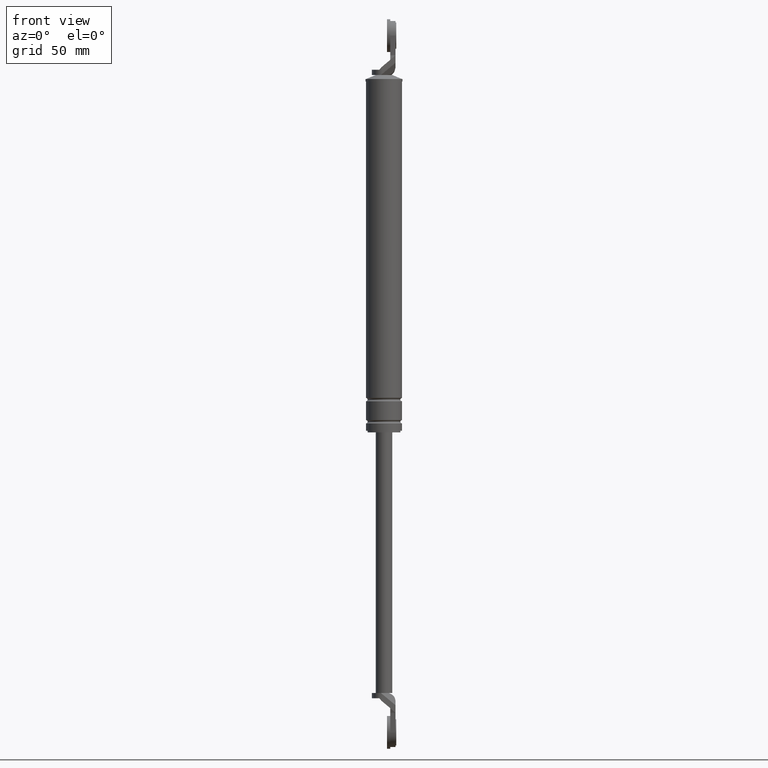
[diagram: clean part render]
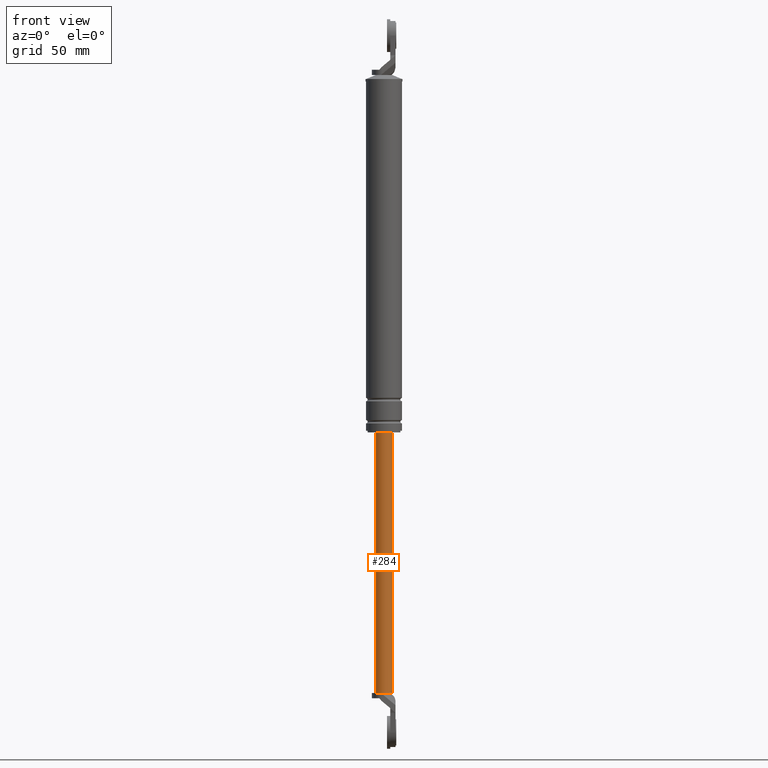
[diagram: same view with one face highlighted and labeled with its STEP entity id]
A machine part, front view. The second image highlights one B-rep face of the part: STEP entity #284.
In plain terms, the highlighted cylindrical surface (edge-blend (fillet) strip) has radius 5 mm, axis along (0, 0, 1).
Its self-contained STEP definition (entity closure, byte-faithful):
#284=ADVANCED_FACE('',(#1099),#1098,.T.);
#1098=CYLINDRICAL_SURFACE('',#1768,5.00000000000E+000);
#1099=FACE_OUTER_BOUND('',#1769,.T.);
#1765=CARTESIAN_POINT('',(0.00000000000E+000,3.58204186421E-014,0.00000000000E+000));
#1766=DIRECTION('',(-0.00000000000E+000,-0.00000000000E+000,1.00000000000E+000));
#1767=DIRECTION('',(1.00000000000E+000,0.00000000000E+000,0.00000000000E+000));
#1768=AXIS2_PLACEMENT_3D('',#1765,#1766,#1767);
#1769=EDGE_LOOP('',(#2167,#2168,#2169,#2170,#2171));
#2167=ORIENTED_EDGE('',*,*,#2372,.F.);
#2168=ORIENTED_EDGE('',*,*,#2343,.F.);
#2169=ORIENTED_EDGE('',*,*,#2376,.T.);
#2170=ORIENTED_EDGE('',*,*,#2374,.T.);
#2171=ORIENTED_EDGE('',*,*,#2377,.F.);
#2343=EDGE_CURVE('',#3464,#3442,#3471,.T.);
#2372=EDGE_CURVE('',#3442,#3657,#3658,.T.);
#2374=EDGE_CURVE('',#3670,#3671,#3672,.T.);
#2376=EDGE_CURVE('',#3464,#3670,#3684,.T.);
#2377=EDGE_CURVE('',#3657,#3671,#3690,.T.);
#3442=VERTEX_POINT('',#4363);
#3464=VERTEX_POINT('',#4377);
#3471=CIRCLE('',#4385,5.00000000000E+000);
#3657=VERTEX_POINT('',#4487);
#3658=CIRCLE('',#4491,5.00000000000E+000);
#3670=VERTEX_POINT('',#4496);
#3671=VERTEX_POINT('',#4497);
#3672=CIRCLE('',#4501,5.00000000000E+000);
#3684=(BOUNDED_CURVE() B_SPLINE_CURVE(1,(#4506,#4507),.UNSPECIFIED.,.F.,.F.) B_SPLINE_CURVE_WITH_KNOTS((2,2),(5.58659216388E-002,9.44134078355E-001),.UNSPECIFIED.) CURVE() GEOMETRIC_REPRESENTATION_ITEM() RATIONAL_B_SPLINE_CURVE((1.00000000000E+000,1.00000000000E+000)) REPRESENTATION_ITEM('') );
#3690=(BOUNDED_CURVE() B_SPLINE_CURVE(1,(#4508,#4509),.UNSPECIFIED.,.F.,.F.) B_SPLINE_CURVE_WITH_KNOTS((2,2),(5.58659217877E-002,9.44134078212E-001),.UNSPECIFIED.) CURVE() GEOMETRIC_REPRESENTATION_ITEM() RATIONAL_B_SPLINE_CURVE((7.50000000000E-001,7.50000000000E-001)) REPRESENTATION_ITEM('') );
#4363=CARTESIAN_POINT('',(2.00000000000E+000,-4.58257569496E+000,-2.88000015000E+002));
#4377=CARTESIAN_POINT('',(5.00000000000E+000,-1.00795464218E-011,-2.88000015000E+002));
#4382=CARTESIAN_POINT('',(0.00000000000E+000,3.58204186421E-014,-2.88000015000E+002));
#4383=DIRECTION('',(0.00000000000E+000,0.00000000000E+000,-1.00000000000E+000));
#4384=DIRECTION('',(4.00000000000E-001,9.16515138991E-001,0.00000000000E+000));
#4385=AXIS2_PLACEMENT_3D('',#4382,#4383,#4384);
#4487=CARTESIAN_POINT('',(-5.00000000000E+000,8.97827334275E-007,-2.88000015000E+002));
#4488=CARTESIAN_POINT('',(0.00000000000E+000,3.58204186421E-014,-2.88000015000E+002));
#4489=DIRECTION('',(0.00000000000E+000,0.00000000000E+000,-1.00000000000E+000));
#4490=DIRECTION('',(1.00000000000E+000,-0.00000000000E+000,-0.00000000000E+000));
#4491=AXIS2_PLACEMENT_3D('',#4488,#4489,#4490);
#4496=CARTESIAN_POINT('',(5.00000000000E+000,3.58231962612E-014,-1.29000015000E+002));
#4497=CARTESIAN_POINT('',(-5.00000000000E+000,3.58204186421E-014,-1.29000015000E+002));
#4498=CARTESIAN_POINT('',(0.00000000000E+000,3.58204186421E-014,-1.29000015000E+002));
#4499=DIRECTION('',(-0.00000000000E+000,0.00000000000E+000,-1.00000000000E+000));
#4500=DIRECTION('',(-1.00000000000E+000,-1.22460635382E-016,0.00000000000E+000));
#4501=AXIS2_PLACEMENT_3D('',#4498,#4499,#4500);
#4506=CARTESIAN_POINT('',(5.00000000000E+000,3.58204186421E-014,-2.88000015027E+002));
#4507=CARTESIAN_POINT('',(5.00000000000E+000,3.58204186421E-014,-1.29000014975E+002));
#4508=CARTESIAN_POINT('',(-5.00000000000E+000,3.55271367880E-014,-2.88000015000E+002));
#4509=CARTESIAN_POINT('',(-5.00000000000E+000,3.55271367880E-014,-1.29000015000E+002));